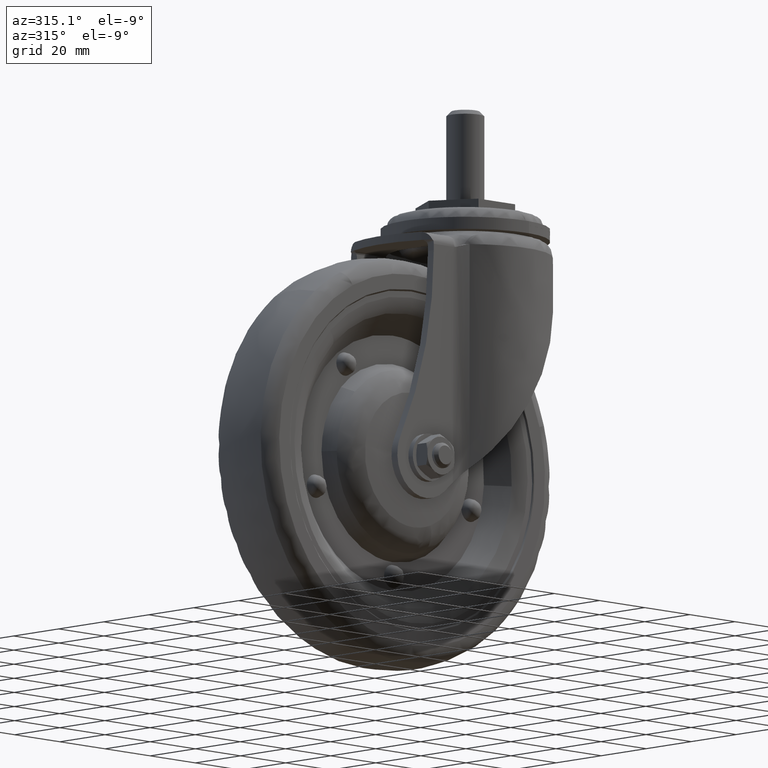
[diagram: clean part render]
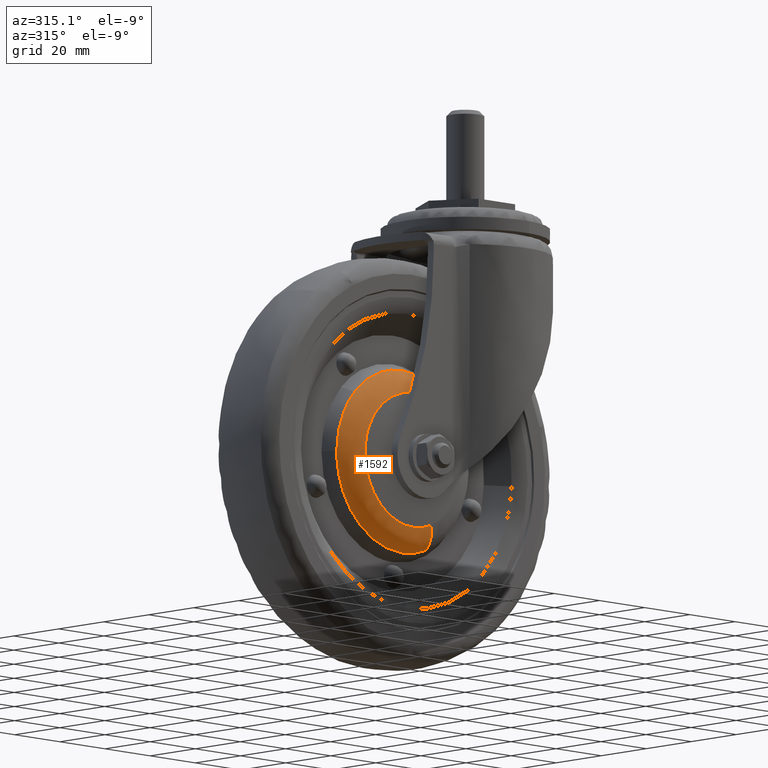
[diagram: same view with one face highlighted and labeled with its STEP entity id]
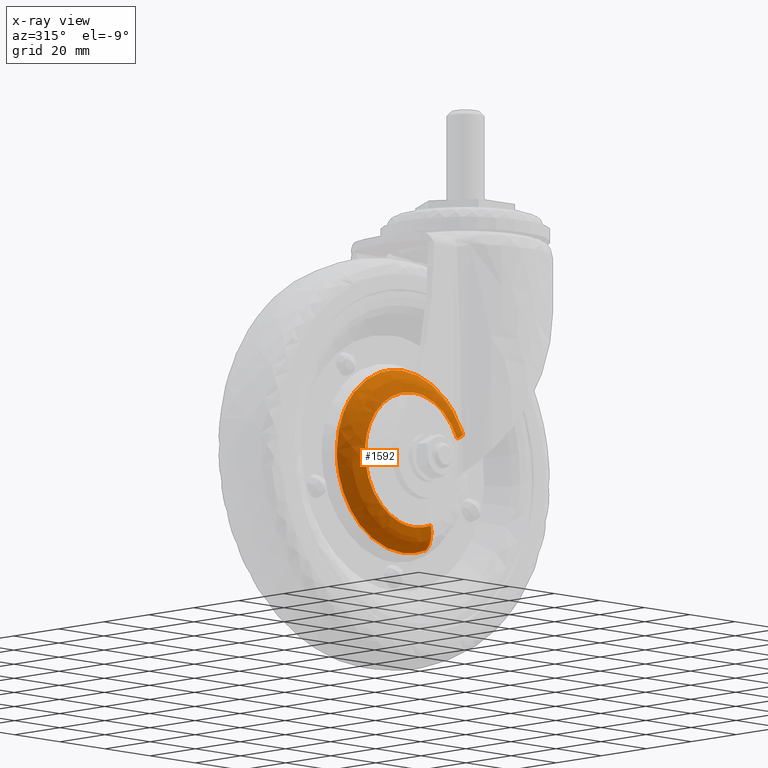
[diagram: x-ray of the same camera — body ghosted, the highlighted face saturated]
A machine part, auxiliary view. The second image highlights one B-rep face of the part: STEP entity #1592.
The next image is the same camera in x-ray: the body ghosted, the highlighted face saturated — about 0% of this face is hidden behind the body in this view.
In plain terms, the highlighted face is a freeform B-spline surface patch.
Its self-contained STEP definition (entity closure, byte-faithful):
#286=CARTESIAN_POINT('',(-56.959698454136557,-8.055721030304266,-66.039449676240110));
#287=VERTEX_POINT('',#286);
#288=CARTESIAN_POINT('',(-36.0,-8.055721030304362,-57.056448889132710));
#289=VERTEX_POINT('',#288);
#290=CARTESIAN_POINT('',(-56.959698454136550,-8.055721030304266,-66.039449676240125));
#291=CARTESIAN_POINT('',(-48.404836442832604,-8.055721030304360,-57.056448889132703));
#292=CARTESIAN_POINT('',(-36.0,-8.055721030304362,-57.056448889132710));
#300=(BOUNDED_CURVE()B_SPLINE_CURVE(2,(#290,#291,#292),.UNSPECIFIED.,.F.,.U.)B_SPLINE_CURVE_WITH_KNOTS((3,3),(0.871317023849590,1.0),.UNSPECIFIED.)CURVE()GEOMETRIC_REPRESENTATION_ITEM()RATIONAL_B_SPLINE_CURVE((0.853680523245773,0.849238515635247,1.0))REPRESENTATION_ITEM(''));
#301=EDGE_CURVE('',#287,#289,#300,.T.);
#303=CARTESIAN_POINT('',(-9.658121976102891,-8.055709182208840,-74.006610890971672));
#304=VERTEX_POINT('',#303);
#305=CARTESIAN_POINT('',(-36.0,-8.055721030304362,-57.056448889132710));
#306=CARTESIAN_POINT('',(-17.375612383876888,-8.055715106256601,-57.056447471869497));
#307=CARTESIAN_POINT('',(-9.658121976102891,-8.055709182208840,-74.006610890971672));
#315=(BOUNDED_CURVE()B_SPLINE_CURVE(2,(#305,#306,#307),.UNSPECIFIED.,.F.,.U.)B_SPLINE_CURVE_WITH_KNOTS((3,3),(0.0,0.179624536282348),.UNSPECIFIED.)CURVE()GEOMETRIC_REPRESENTATION_ITEM()RATIONAL_B_SPLINE_CURVE((1.0,0.789556765561557,0.881519678321216))REPRESENTATION_ITEM(''));
#316=EDGE_CURVE('',#289,#304,#315,.T.);
#318=CARTESIAN_POINT('',(-25.532604611782620,-8.055721030529806,-112.984881207393300));
#319=VERTEX_POINT('',#318);
#335=CARTESIAN_POINT('',(-36.0,-8.055721030304362,-114.943927110867310));
#336=VERTEX_POINT('',#335);
#337=CARTESIAN_POINT('',(-25.532604611782620,-8.055721030529806,-112.984881207393360));
#338=CARTESIAN_POINT('',(-30.582977767606888,-8.055721030304362,-114.943927110867350));
#339=CARTESIAN_POINT('',(-36.0,-8.055721030304362,-114.943927110867310));
#347=(BOUNDED_CURVE()B_SPLINE_CURVE(2,(#337,#338,#339),.UNSPECIFIED.,.F.,.U.)B_SPLINE_CURVE_WITH_KNOTS((3,3),(0.438590655708729,0.500000000000000),.UNSPECIFIED.)CURVE()GEOMETRIC_REPRESENTATION_ITEM()RATIONAL_B_SPLINE_CURVE((0.891453974557029,0.928054477941224,1.0))REPRESENTATION_ITEM(''));
#348=EDGE_CURVE('',#319,#336,#347,.T.);
#350=CARTESIAN_POINT('',(-64.942637021972018,-8.055721030301477,-85.747609433177104));
#351=VERTEX_POINT('',#350);
#352=CARTESIAN_POINT('',(-36.0,-8.055721030304362,-114.943927110867310));
#353=CARTESIAN_POINT('',(-64.943739110867298,-8.055721030304362,-114.943927110867290));
#354=CARTESIAN_POINT('',(-64.943739110867298,-8.055721030304362,-86.000188000000009));
#355=CARTESIAN_POINT('',(-64.943739110867298,-8.055721030304364,-85.873896312180236));
#356=CARTESIAN_POINT('',(-64.942637021972018,-8.055721030301477,-85.747609433177104));
#364=(BOUNDED_CURVE()B_SPLINE_CURVE(2,(#352,#353,#354,#355,#356),.UNSPECIFIED.,.F.,.U.)B_SPLINE_CURVE_WITH_KNOTS((3,2,3),(0.500000000000000,0.750000000000000,0.751539894335184),.UNSPECIFIED.)CURVE()GEOMETRIC_REPRESENTATION_ITEM()RATIONAL_B_SPLINE_CURVE((1.0,0.707106781186548,1.0,0.998195901566141,0.996414028099949))REPRESENTATION_ITEM(''));
#365=EDGE_CURVE('',#336,#351,#364,.T.);
#445=CARTESIAN_POINT('',(-64.942637021972018,-8.055721030301477,-85.747609433177104));
#446=CARTESIAN_POINT('',(-64.842885002371389,-8.055721030304365,-74.317160161124477));
#447=CARTESIAN_POINT('',(-56.959698454136550,-8.055721030304266,-66.039449676240125));
#455=(BOUNDED_CURVE()B_SPLINE_CURVE(2,(#445,#446,#447),.UNSPECIFIED.,.F.,.U.)B_SPLINE_CURVE_WITH_KNOTS((3,3),(0.751539894335185,0.871317023849589),.UNSPECIFIED.)CURVE()GEOMETRIC_REPRESENTATION_ITEM()RATIONAL_B_SPLINE_CURVE((0.996414028099949,0.857815109939263,0.853680523245773))REPRESENTATION_ITEM(''));
#456=EDGE_CURVE('',#351,#287,#455,.T.);
#1466=CARTESIAN_POINT('',(-28.432762388564534,-13.035160174213857,-105.508344308331620));
#1467=CARTESIAN_POINT('',(-46.855356904459498,-13.035160174213848,-112.654491177237220));
#1468=CARTESIAN_POINT('',(-55.043437297766012,-13.035160174213857,-94.670755657557166));
#1469=CARTESIAN_POINT('',(-63.714004955323169,-13.035160174213853,-75.627318359791133));
#1470=CARTESIAN_POINT('',(-44.670567657557143,-13.035160174213857,-66.956750702234004));
#1471=CARTESIAN_POINT('',(-25.627130359791135,-13.035160174213853,-58.286183044676861));
#1472=CARTESIAN_POINT('',(-16.956562702233988,-13.035160174213857,-77.329620342442851));
#1473=CARTESIAN_POINT('',(-26.395093049939437,-12.673287470528294,-110.761406786840520));
#1474=CARTESIAN_POINT('',(-49.778435187427988,-12.673287470528296,-119.831833705057050));
#1475=CARTESIAN_POINT('',(-60.171362476836244,-12.673287470528299,-97.005524402968234));
#1476=CARTESIAN_POINT('',(-71.176698879804448,-12.673287470528297,-72.834161926131983));
#1477=CARTESIAN_POINT('',(-47.005336402968211,-12.673287470528299,-61.828825523163779));
#1478=CARTESIAN_POINT('',(-22.833973926131964,-12.673287470528297,-50.823489120195575));
#1479=CARTESIAN_POINT('',(-11.828637523163760,-12.673287470528299,-74.994851597031797));
#1480=CARTESIAN_POINT('',(-25.454579539454691,-7.661864511974629,-113.186027964971330));
#1481=CARTESIAN_POINT('',(-51.127621026967311,-7.661864511974629,-123.144632052087270));
#1482=CARTESIAN_POINT('',(-62.538224862332385,-7.661864511974629,-98.083168114483414));
#1483=CARTESIAN_POINT('',(-74.621204976815761,-7.661864511974629,-71.544943252151029));
#1484=CARTESIAN_POINT('',(-48.082980114483391,-7.661864511974629,-59.461963137667652));
#1485=CARTESIAN_POINT('',(-21.544755252151024,-7.661864511974629,-47.378983023184261));
#1486=CARTESIAN_POINT('',(-9.461775137667631,-7.661864511974629,-73.917207885516618));
#1494=(BOUNDED_SURFACE()B_SPLINE_SURFACE(2,2,((#1466,#1473,#1480),(#1467,#1474,#1481),(#1468,#1475,#1482),(#1469,#1476,#1483),(#1470,#1477,#1484),(#1471,#1478,#1485),(#1472,#1479,#1486)),.UNSPECIFIED.,.F.,.F.,.U.)B_SPLINE_SURFACE_WITH_KNOTS((3,2,2,3),(3,3),(0.0,46.380502019873227,94.693524957241181,143.006547894609100),(0.0,10.512171262087341),.UNSPECIFIED.)GEOMETRIC_REPRESENTATION_ITEM()RATIONAL_B_SPLINE_SURFACE(((0.904954738529465,0.788041621032447,0.904988086304352),(0.665471075467670,0.579497385597339,0.665495598218559),(0.925779404882664,0.806175902374630,0.925813520050943),(0.654624895075378,0.570052447398285,0.654649018142210),(0.925779404882664,0.806175902374630,0.925813520050943),(0.654624895075378,0.570052447398285,0.654649018142210),(0.925779404882664,0.806175902374630,0.925813520050943)))REPRESENTATION_ITEM('')SURFACE());
#1495=ORIENTED_EDGE('',*,*,#348,.F.);
#1496=CARTESIAN_POINT('',(-28.270893898526420,-12.996301322084500,-105.925637374638800));
#1497=VERTEX_POINT('',#1496);
#1498=CARTESIAN_POINT('',(-28.270893898526420,-12.996301322084504,-105.925637374638780));
#1499=CARTESIAN_POINT('',(-26.448997876749932,-12.444649690762299,-110.622441441599680));
#1500=CARTESIAN_POINT('',(-25.532604611782624,-8.055721030529806,-112.984881207393390));
#1508=(BOUNDED_CURVE()B_SPLINE_CURVE(2,(#1498,#1499,#1500),.UNSPECIFIED.,.F.,.U.)B_SPLINE_CURVE_WITH_KNOTS((3,3),(-1.607258274622461,-0.392527300304600),.UNSPECIFIED.)CURVE()GEOMETRIC_REPRESENTATION_ITEM()RATIONAL_B_SPLINE_CURVE((0.894814154150960,0.798181819320431,0.894848275374680))REPRESENTATION_ITEM(''));
#1509=EDGE_CURVE('',#1497,#319,#1508,.T.);
#1510=ORIENTED_EDGE('',*,*,#1509,.F.);
#1511=CARTESIAN_POINT('',(-36.0,-12.996301291826640,-107.372187686720690));
#1512=VERTEX_POINT('',#1511);
#1513=CARTESIAN_POINT('',(-36.0,-12.996301291826640,-107.372187686720690));
#1514=CARTESIAN_POINT('',(-32.000080345605696,-12.996301291826644,-107.372187686720710));
#1515=CARTESIAN_POINT('',(-28.270893898526417,-12.996301322084502,-105.925637374638780));
#1523=(BOUNDED_CURVE()B_SPLINE_CURVE(2,(#1513,#1514,#1515),.UNSPECIFIED.,.F.,.U.)B_SPLINE_CURVE_WITH_KNOTS((3,3),(0.500000000000000,0.561409360776143),.UNSPECIFIED.)CURVE()GEOMETRIC_REPRESENTATION_ITEM()RATIONAL_B_SPLINE_CURVE((1.0,0.928054458627995,0.891453954906777))REPRESENTATION_ITEM(''));
#1524=EDGE_CURVE('',#1512,#1497,#1523,.T.);
#1525=ORIENTED_EDGE('',*,*,#1524,.F.);
#1526=CARTESIAN_POINT('',(-57.229056036369371,-12.996301291213230,-83.532486508055783));
#1527=VERTEX_POINT('',#1526);
#1528=CARTESIAN_POINT('',(-57.229056036369371,-12.996301291213236,-83.532486508055783));
#1529=CARTESIAN_POINT('',(-57.371999686720699,-12.996301291826644,-84.762197180190498));
#1530=CARTESIAN_POINT('',(-57.371999686720699,-12.996301291826640,-86.000188000000009));
#1531=CARTESIAN_POINT('',(-57.371999686720699,-12.996301291826640,-107.372187686720710));
#1532=CARTESIAN_POINT('',(-36.0,-12.996301291826640,-107.372187686720690));
#1540=(BOUNDED_CURVE()B_SPLINE_CURVE(2,(#1528,#1529,#1530,#1531,#1532),.UNSPECIFIED.,.F.,.U.)B_SPLINE_CURVE_WITH_KNOTS((3,2,3),(0.229999999708500,0.250000000000000,0.500000000000000),.UNSPECIFIED.)CURVE()GEOMETRIC_REPRESENTATION_ITEM()RATIONAL_B_SPLINE_CURVE((0.956886117616917,0.976568542153410,1.0,0.707106781186547,1.0))REPRESENTATION_ITEM(''));
#1541=EDGE_CURVE('',#1527,#1512,#1540,.T.);
#1542=ORIENTED_EDGE('',*,*,#1541,.F.);
#1543=CARTESIAN_POINT('',(-36.0,-12.996321279722350,-64.628370849182303));
#1544=VERTEX_POINT('',#1543);
#1545=CARTESIAN_POINT('',(-36.0,-12.996321279722350,-64.628370849182303));
#1546=CARTESIAN_POINT('',(-55.031588321928979,-12.996311285467788,-64.628279590053211));
#1547=CARTESIAN_POINT('',(-57.229056036369371,-12.996301291213236,-83.532486508055783));
#1555=(BOUNDED_CURVE()B_SPLINE_CURVE(2,(#1545,#1546,#1547),.UNSPECIFIED.,.F.,.U.)B_SPLINE_CURVE_WITH_KNOTS((3,3),(0.0,0.229999999708500),.UNSPECIFIED.)CURVE()GEOMETRIC_REPRESENTATION_ITEM()RATIONAL_B_SPLINE_CURVE((1.0,0.730538239033137,0.956886117616917))REPRESENTATION_ITEM(''));
#1556=EDGE_CURVE('',#1544,#1527,#1555,.T.);
#1557=ORIENTED_EDGE('',*,*,#1556,.F.);
#1558=CARTESIAN_POINT('',(-16.549264569104292,-12.996311337018600,-77.144175563312757));
#1559=VERTEX_POINT('',#1558);
#1560=CARTESIAN_POINT('',(-16.549264569104285,-12.996311337018600,-77.144175563312757));
#1561=CARTESIAN_POINT('',(-22.247877147586529,-12.996319234690311,-64.628370941802856));
#1562=CARTESIAN_POINT('',(-36.0,-12.996321279722350,-64.628370849182303));
#1570=(BOUNDED_CURVE()B_SPLINE_CURVE(2,(#1560,#1561,#1562),.UNSPECIFIED.,.F.,.U.)B_SPLINE_CURVE_WITH_KNOTS((3,3),(0.820376346579243,1.0),.UNSPECIFIED.)CURVE()GEOMETRIC_REPRESENTATION_ITEM()RATIONAL_B_SPLINE_CURVE((0.881518774325927,0.789557799898250,1.0))REPRESENTATION_ITEM(''));
#1571=EDGE_CURVE('',#1559,#1544,#1570,.T.);
#1572=ORIENTED_EDGE('',*,*,#1571,.F.);
#1573=CARTESIAN_POINT('',(-16.549264569104288,-12.996311337018605,-77.144175563312757));
#1574=CARTESIAN_POINT('',(-11.964300738058512,-12.444683654541839,-75.056622382109552));
#1575=CARTESIAN_POINT('',(-9.658121976102891,-8.055709182208842,-74.006610890971672));
#1583=(BOUNDED_CURVE()B_SPLINE_CURVE(2,(#1573,#1574,#1575),.UNSPECIFIED.,.F.,.U.)B_SPLINE_CURVE_WITH_KNOTS((3,3),(-1.607266385544406,-0.392525462057237),.UNSPECIFIED.)CURVE()GEOMETRIC_REPRESENTATION_ITEM()RATIONAL_B_SPLINE_CURVE((0.915406787239404,0.816548635292996,0.915440672799208))REPRESENTATION_ITEM(''));
#1584=EDGE_CURVE('',#1559,#304,#1583,.T.);
#1585=ORIENTED_EDGE('',*,*,#1584,.T.);
#1586=ORIENTED_EDGE('',*,*,#316,.F.);
#1587=ORIENTED_EDGE('',*,*,#301,.F.);
#1588=ORIENTED_EDGE('',*,*,#456,.F.);
#1589=ORIENTED_EDGE('',*,*,#365,.F.);
#1590=EDGE_LOOP('',(#1495,#1510,#1525,#1542,#1557,#1572,#1585,#1586,#1587,#1588,#1589));
#1591=FACE_OUTER_BOUND('',#1590,.T.);
#1592=ADVANCED_FACE('',(#1591),#1494,.T.);